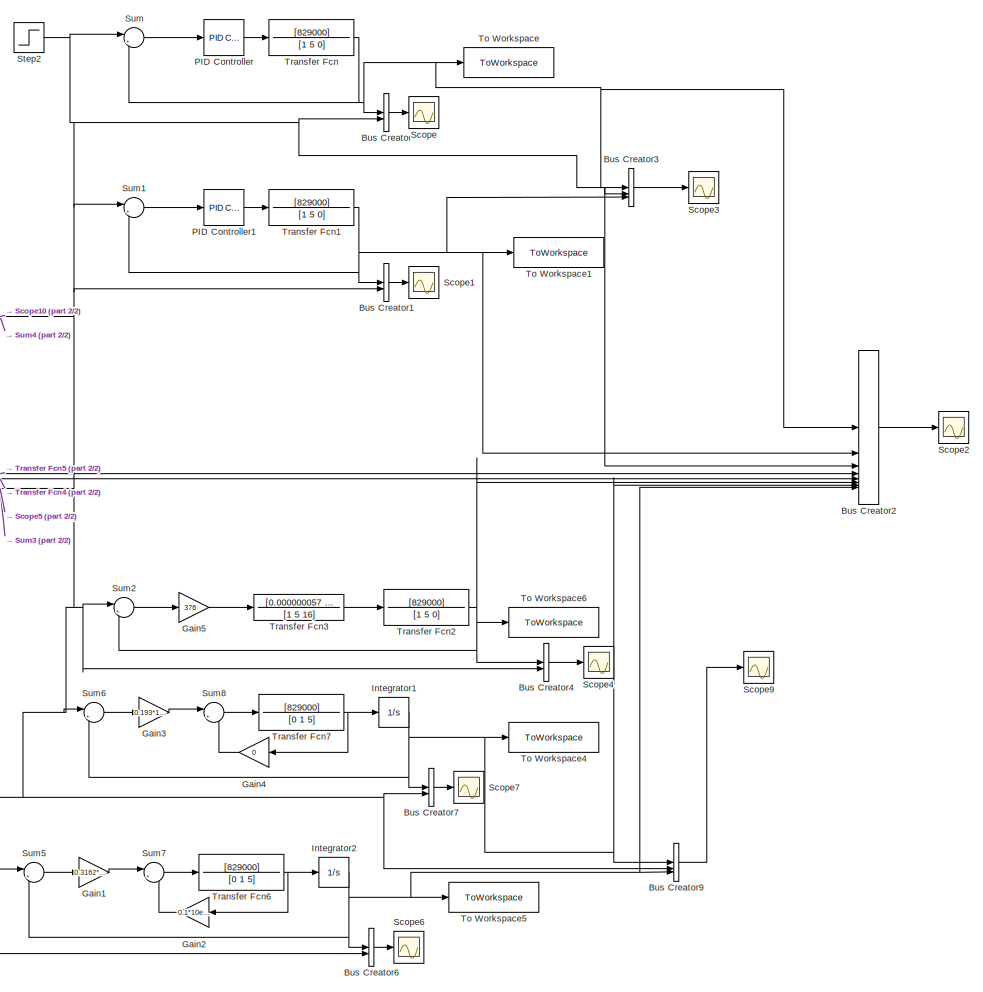
[diagram: root canvas - part 1/2, right side, full height]
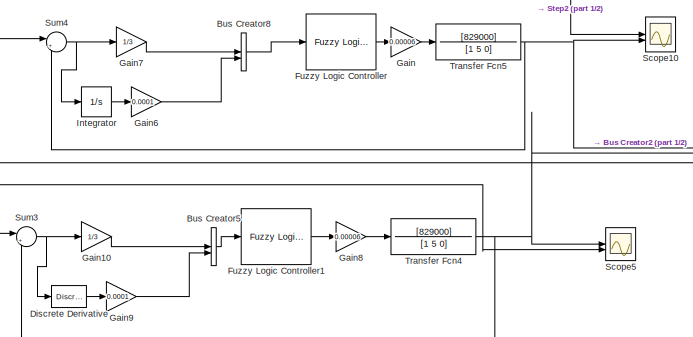
[diagram: root canvas - part 2/2, middle left region]
MODEL slx_a7d6b5a339d7
KIND model
CONFIG AbsTol = auto
CONFIG EnableMultiTasking = off
CONFIG FixedStep = auto
CONFIG MaxStep = auto
CONFIG MinStep = auto
CONFIG RelTol = 1e-3
CONFIG SampleTimeConstraint = Unconstrained
CONFIG SolverName = VariableStepAuto
CONFIG StartTime = 0.0
CONFIG StopTime = 4.5
BLOCK [BusCreator] Bus Creator
  DisplayOption = bar
  InheritFromInputs = on
  Inputs = 2
BLOCK [BusCreator] Bus Creator1
  DisplayOption = bar
  InheritFromInputs = on
  Inputs = 2
BLOCK [BusCreator] Bus Creator2
  DisplayOption = bar
  InheritFromInputs = on
  Inputs = 8
BLOCK [BusCreator] Bus Creator3
  DisplayOption = bar
  InheritFromInputs = on
  Inputs = 3
BLOCK [BusCreator] Bus Creator4
  DisplayOption = bar
  InheritFromInputs = on
  Inputs = 2
BLOCK [BusCreator] Bus Creator5
  DisplayOption = bar
  InheritFromInputs = on
  Inputs = 2
BLOCK [BusCreator] Bus Creator6
  DisplayOption = bar
  InheritFromInputs = on
  Inputs = 2
BLOCK [BusCreator] Bus Creator7
  DisplayOption = bar
  InheritFromInputs = on
  Inputs = 2
BLOCK [BusCreator] Bus Creator8
  DisplayOption = bar
  InheritFromInputs = on
  Inputs = 2
BLOCK [BusCreator] Bus Creator9
  DisplayOption = bar
  InheritFromInputs = on
  Inputs = 3
BLOCK [Reference] Discrete Derivative  REF=simulink/Discrete/Discrete Derivative
  SourceBlock = simulink/Discrete/Discrete Derivative
  SourceType = Discrete Derivative
BLOCK [Reference] Fuzzy Logic Controller  REF=fuzblock/Fuzzy Logic   (lib defined in mdl_858b3b3e7478)
Controller
  SourceBlock = fuzblock/Fuzzy Logic \nController
  SourceType = Fuzzy Inference System
BLOCK [Reference] Fuzzy Logic Controller1  REF=fuzblock/Fuzzy Logic   (lib defined in mdl_858b3b3e7478)
Controller
  SourceBlock = fuzblock/Fuzzy Logic \nController
  SourceType = Fuzzy Inference System
BLOCK [Gain] Gain
  Gain = 0.00006
BLOCK [Gain] Gain1
  Gain = 0.3162*10e-3
BLOCK [Gain] Gain10
  Gain = 1/3
BLOCK [Gain] Gain2
  Gain = 0.1*10e-3
BLOCK [Gain] Gain3
  Gain = 0.193*10e-4
BLOCK [Gain] Gain4
  Gain = 0
BLOCK [Gain] Gain5
  Gain = 376
BLOCK [Gain] Gain6
  Gain = 0.0001
BLOCK [Gain] Gain7
  Gain = 1/3
BLOCK [Gain] Gain8
  Gain = 0.00006
BLOCK [Gain] Gain9
  Gain = 0.0001
BLOCK [Integrator] Integrator
BLOCK [Integrator] Integrator1
BLOCK [Integrator] Integrator2
BLOCK [Reference] PID Controller  REF=slpidlib/PID Controller
  LibrarySourceBlock = simulink/Continuous/PID Controller
  SourceBlock = slpidlib/PID Controller
  SourceType = PID 1dof
BLOCK [Reference] PID Controller1  REF=slpidlib/PID Controller
  LibrarySourceBlock = simulink/Continuous/PID Controller
  SourceBlock = slpidlib/PID Controller
  SourceType = PID 1dof
BLOCK [Scope] Scope
  Floating = off
  NumInputPorts = 1
  ScopeSpecificationString = Simulink.scopes.TimeScopeBlockCfg('CurrentConfiguration', extmgr.ConfigurationSet(extmgr.Configuration('Core','General UI',true),extmgr.Configuration('Core','Source UI',true),extmgr.Configuration('Sources','WiredSimulink',true,'DataLoggingVariableName','ScopeData6'),extmgr.Configuration('Visuals','Time Domain',true,'SerializedDisplays',{struct('MinYLimReal','-3.8031','MaxYLimReal','34.22794','YLab...<+1835ch>
BLOCK [Scope] Scope1
  Floating = off
  NumInputPorts = 1
  ScopeSpecificationString = Simulink.scopes.TimeScopeBlockCfg('CurrentConfiguration', extmgr.ConfigurationSet(extmgr.Configuration('Core','General UI',true),extmgr.Configuration('Core','Source UI',true),extmgr.Configuration('Sources','WiredSimulink',true,'DataLoggingVariableName','ScopeData8'),extmgr.Configuration('Visuals','Time Domain',true,'SerializedDisplays',{struct('MinYLimReal','-6.81748','MaxYLimReal','40.49951','YLa...<+1600ch>
BLOCK [Scope] Scope10
  Floating = off
  NumInputPorts = 2
  ScopeSpecificationString = Simulink.scopes.TimeScopeBlockCfg('CurrentConfiguration', extmgr.ConfigurationSet(extmgr.Configuration('Core','General UI',true),extmgr.Configuration('Core','Source UI',true),extmgr.Configuration('Sources','WiredSimulink',true,'DataLoggingVariableName','ScopeData1'),extmgr.Configuration('Visuals','Time Domain',true,'SerializedDisplays',{struct('MinYLimReal','-3.77748','MaxYLimReal','33.99734','YLa...<+1596ch>
BLOCK [Scope] Scope2
  Floating = off
  NumInputPorts = 1
  ScopeSpecificationString = Simulink.scopes.TimeScopeBlockCfg('CurrentConfiguration', extmgr.ConfigurationSet(extmgr.Configuration('Core','General UI',true,'FigureColor',[0 0 0]),extmgr.Configuration('Core','Source UI',true),extmgr.Configuration('Sources','WiredSimulink',true),extmgr.Configuration('Visuals','Time Domain',true,'SerializedDisplays',{struct('MinYLimReal','-0.19341','MaxYLimReal','1.74066','YLabelReal','','MinYL...<+2254ch>
BLOCK [Scope] Scope3
  Floating = off
  NumInputPorts = 1
  ScopeSpecificationString = Simulink.scopes.TimeScopeBlockCfg('CurrentConfiguration', extmgr.ConfigurationSet(extmgr.Configuration('Core','General UI',true,'FigureColor',[0 0 0]),extmgr.Configuration('Core','Source UI',true),extmgr.Configuration('Sources','WiredSimulink',true,'DataLoggingVariableName','ScopeData1'),extmgr.Configuration('Visuals','Time Domain',true,'SerializedDisplays',{struct('MinYLimReal','-0.19341','MaxYLi...<+1975ch>
BLOCK [Scope] Scope4
  Floating = off
  NumInputPorts = 1
  ScopeSpecificationString = Simulink.scopes.TimeScopeBlockCfg('CurrentConfiguration', extmgr.ConfigurationSet(extmgr.Configuration('Core','General UI',true),extmgr.Configuration('Core','Source UI',true),extmgr.Configuration('Sources','WiredSimulink',true,'DataLoggingVariableName','ScopeData1'),extmgr.Configuration('Visuals','Time Domain',true,'SerializedDisplays',{struct('MinYLimReal','-0.12682','MaxYLimReal','1.14141','YLab...<+1788ch>
BLOCK [Scope] Scope5
  Floating = off
  NumInputPorts = 2
  ScopeSpecificationString = Simulink.scopes.TimeScopeBlockCfg('CurrentConfiguration', extmgr.ConfigurationSet(extmgr.Configuration('Core','General UI',true),extmgr.Configuration('Core','Source UI',true),extmgr.Configuration('Sources','WiredSimulink',true,'DataLoggingVariableName','ScopeData2'),extmgr.Configuration('Visuals','Time Domain',true,'SerializedDisplays',{struct('MinYLimReal','-3.77728','MaxYLimReal','33.9955','YLab...<+1636ch>
BLOCK [Scope] Scope6
  Floating = off
  NumInputPorts = 1
  ScopeSpecificationString = Simulink.scopes.TimeScopeBlockCfg('CurrentConfiguration', extmgr.ConfigurationSet(extmgr.Configuration('Core','General UI',true),extmgr.Configuration('Core','Source UI',true),extmgr.Configuration('Sources','WiredSimulink',true,'DataLoggingVariableName','ScopeData4'),extmgr.Configuration('Visuals','Time Domain',true,'SerializedDisplays',{struct('MinYLimReal','-3.75013','MaxYLimReal','33.75117','YLa...<+1808ch>
BLOCK [Scope] Scope7
  Floating = off
  NumInputPorts = 1
  ScopeSpecificationString = Simulink.scopes.TimeScopeBlockCfg('CurrentConfiguration', extmgr.ConfigurationSet(extmgr.Configuration('Core','General UI',true),extmgr.Configuration('Core','Source UI',true),extmgr.Configuration('Sources','WiredSimulink',true,'DataLoggingVariableName','ScopeData5'),extmgr.Configuration('Visuals','Time Domain',true,'SerializedDisplays',{struct('MinYLimReal','-0.19134','MaxYLimReal','1.72204','YLab...<+1800ch>
BLOCK [Scope] Scope9
  Floating = off
  NumInputPorts = 1
  ScopeSpecificationString = Simulink.scopes.TimeScopeBlockCfg('CurrentConfiguration', extmgr.ConfigurationSet(extmgr.Configuration('Core','General UI',true,'FigureColor',[0 0 0]),extmgr.Configuration('Core','Source UI',true),extmgr.Configuration('Sources','WiredSimulink',true,'DataLoggingVariableName','ScopeData7'),extmgr.Configuration('Visuals','Time Domain',true,'SerializedDisplays',{struct('MinYLimReal','-0.19134','MaxYLi...<+1997ch>
BLOCK [Step] Step2
  SampleTime = 0
  Time = 0
BLOCK [Sum] Sum
  Inputs = |+-
BLOCK [Sum] Sum1
  Inputs = |+-
BLOCK [Sum] Sum2
  Inputs = |+-
BLOCK [Sum] Sum3
  Inputs = |+-
BLOCK [Sum] Sum4
  Inputs = |+-
BLOCK [Sum] Sum5
  Inputs = |+-
BLOCK [Sum] Sum6
  Inputs = |+-
BLOCK [Sum] Sum7
  Inputs = |+-
BLOCK [Sum] Sum8
  Inputs = |+-
BLOCK [ToWorkspace] To Workspace
  FixptAsFi = on
  MaxDataPoints = inf
  SampleTime = -1
  SaveFormat = Timeseries
  VariableName = PIDZieglerNichols_Step
BLOCK [ToWorkspace] To Workspace1
  FixptAsFi = on
  MaxDataPoints = inf
  SampleTime = -1
  SaveFormat = Timeseries
  VariableName = PIDHandTuning_Step
BLOCK [ToWorkspace] To Workspace4
  FixptAsFi = on
  MaxDataPoints = inf
  SampleTime = -1
  SaveFormat = Timeseries
  VariableName = PPT_Step
BLOCK [ToWorkspace] To Workspace5
  FixptAsFi = on
  MaxDataPoints = inf
  SampleTime = -1
  SaveFormat = Timeseries
  VariableName = LQR_Step
BLOCK [ToWorkspace] To Workspace6
  FixptAsFi = on
  MaxDataPoints = inf
  SampleTime = -1
  SaveFormat = Timeseries
  VariableName = OBC
BLOCK [TransferFcn] Transfer Fcn
  Denominator = [1 5 0]
  Numerator = [829000]
BLOCK [TransferFcn] Transfer Fcn1
  Denominator = [1 5 0]
  Numerator = [829000]
BLOCK [TransferFcn] Transfer Fcn2
  Denominator = [1 5 0]
  Numerator = [829000]
BLOCK [TransferFcn] Transfer Fcn3
  Denominator = [1 5 16]
  Numerator = [0.000000057 0.000000308]
BLOCK [TransferFcn] Transfer Fcn4
  Denominator = [1 5 0]
  Numerator = [829000]
BLOCK [TransferFcn] Transfer Fcn5
  Denominator = [1 5 0]
  Numerator = [829000]
BLOCK [TransferFcn] Transfer Fcn6
  Denominator = [0 1 5]
  Numerator = [829000]
BLOCK [TransferFcn] Transfer Fcn7
  Denominator = [0 1 5]
  Numerator = [829000]
LINE Bus Creator1:1 -> Scope1:1
LINE Bus Creator2:1 -> Scope2:1
LINE Bus Creator3:1 -> Scope3:1
LINE Bus Creator4:1 -> Scope4:1
LINE Bus Creator5:1 -> Fuzzy Logic Controller1:1
LINE Bus Creator6:1 -> Scope6:1
LINE Bus Creator7:1 -> Scope7:1
LINE Bus Creator8:1 -> Fuzzy Logic Controller:1
LINE Bus Creator9:1 -> Scope9:1
LINE Bus Creator:1 -> Scope:1
LINE Discrete Derivative:1 -> Gain9:1
LINE Fuzzy Logic Controller1:1 -> Gain8:1
LINE Fuzzy Logic Controller:1 -> Gain:1
LINE Gain10:1 -> Bus Creator5:1
LINE Gain1:1 -> Sum7:1
LINE Gain2:1 -> Sum7:2
LINE Gain3:1 -> Sum8:1
LINE Gain4:1 -> Sum8:2
LINE Gain5:1 -> Transfer Fcn3:1
LINE Gain6:1 -> Bus Creator8:2
LINE Gain7:1 -> Bus Creator8:1
LINE Gain8:1 -> Transfer Fcn4:1
LINE Gain9:1 -> Bus Creator5:2
LINE Gain:1 -> Transfer Fcn5:1
NET Integrator1:1 -> Bus Creator2:7, Bus Creator7:1, Bus Creator9:1, Sum6:2, To Workspace4:1
NET Integrator2:1 -> Bus Creator2:8, Bus Creator6:1, Bus Creator9:3, Sum5:2, To Workspace5:1
LINE Integrator:1 -> Gain6:1
LINE PID Controller1:1 -> Transfer Fcn1:1
LINE PID Controller:1 -> Transfer Fcn:1
NET Step2:1 -> Bus Creator1:2, Bus Creator2:3, Bus Creator3:2, Bus Creator4:2, Bus Creator6:2, Bus Creator7:2, Bus Creator9:2, Bus Creator:2, Scope10:1, Scope5:2, Sum1:1, Sum2:1, Sum3:1, Sum4:1, Sum5:1, Sum6:1, Sum:1
LINE Sum1:1 -> PID Controller1:1
LINE Sum2:1 -> Gain5:1
NET Sum3:1 -> Discrete Derivative:1, Gain10:1
NET Sum4:1 -> Gain7:1, Integrator:1
LINE Sum5:1 -> Gain1:1
LINE Sum6:1 -> Gain3:1
LINE Sum7:1 -> Transfer Fcn6:1
LINE Sum8:1 -> Transfer Fcn7:1
LINE Sum:1 -> PID Controller:1
NET Transfer Fcn1:1 -> Bus Creator1:1, Bus Creator2:2, Bus Creator3:3, Sum1:2, To Workspace1:1
NET Transfer Fcn2:1 -> Bus Creator2:6, Bus Creator4:1, Sum2:2, To Workspace6:1
LINE Transfer Fcn3:1 -> Transfer Fcn2:1
NET Transfer Fcn4:1 -> Bus Creator2:5, Scope5:1, Sum3:2
NET Transfer Fcn5:1 -> Bus Creator2:4, Scope10:2, Sum4:2
NET Transfer Fcn6:1 -> Gain2:1, Integrator2:1
NET Transfer Fcn7:1 -> Gain4:1, Integrator1:1
NET Transfer Fcn:1 -> Bus Creator2:1, Bus Creator3:1, Bus Creator:1, Sum:2, To Workspace:1
note: NET lines group one-source signal fan-out (src -> all destinations, sorted); 1:1 wires keep LINE
